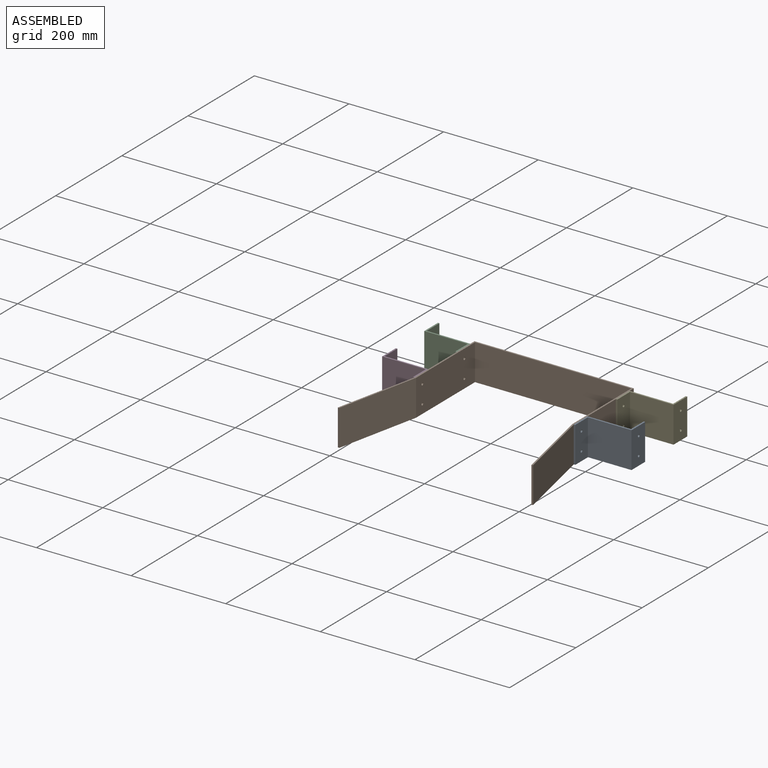
[diagram: assembled view]
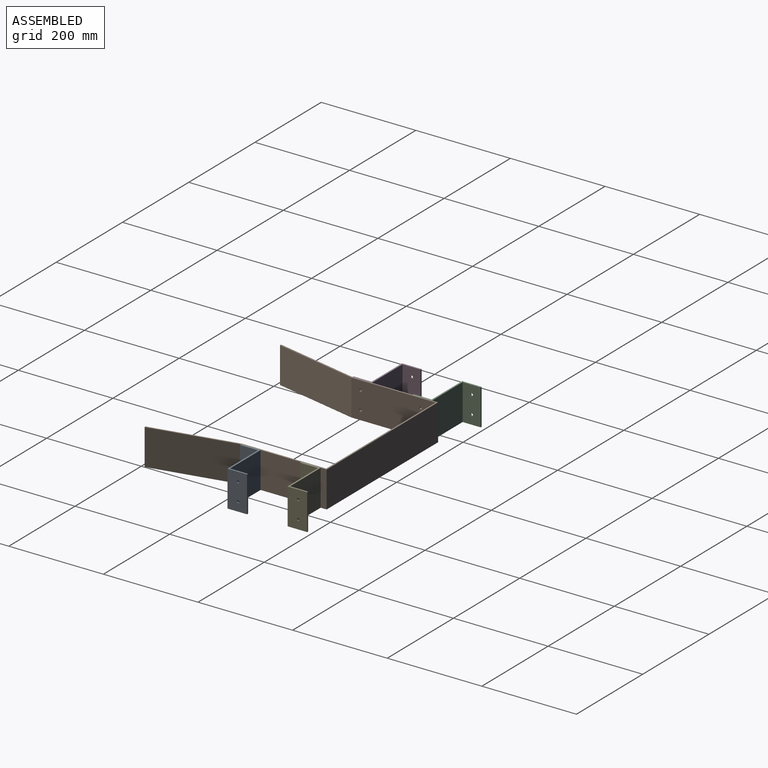
[diagram: assembled view, second angle]
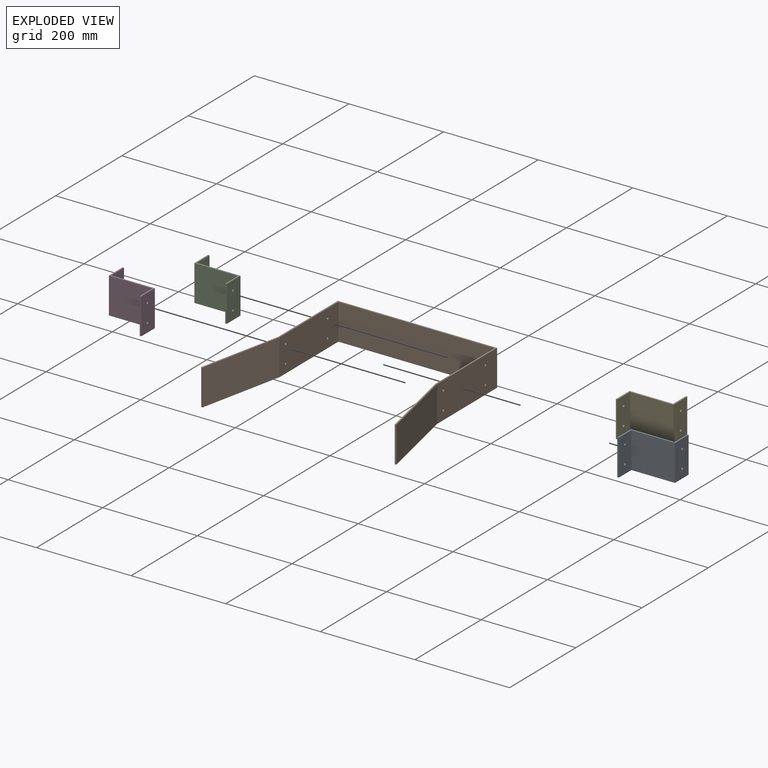
[diagram: exploded view]
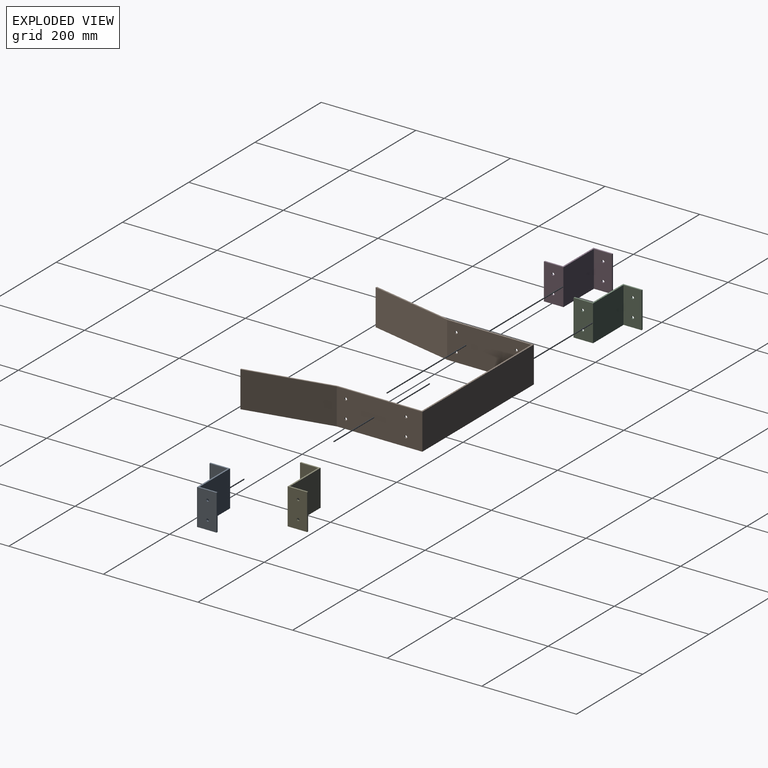
[diagram: exploded view, second angle]
ASSEMBLY  parts=5 mates=4
PART A: 14 faces, bbox 95.3x79.4x76.2 mm
  f0: plane 76.2x3.18mm, normal (0,1,0), area 241.9mm2, adj f1,f7,f8,f9
  f1: plane 76.2x41.28mm, normal (-1,0,0), area 3096.7mm2, adj f0,f2,f8,f9,f10,f11
  f2: plane 92.08x76.2mm, normal (0,-1,0), area 7016.1mm2, adj f1,f3,f8,f9
  f3: plane 76.2x38.1mm, normal (-1,0,0), area 2854.7mm2, adj f2,f4,f8,f9,f12,f13
  f4: plane 76.2x3.18mm, normal (0,-1,0), area 241.9mm2, adj f3,f5,f8,f9
  f5: plane 76.2x41.28mm, normal (1,0,0), area 3096.7mm2, adj f4,f6,f8,f9,f12,f13
  f6: plane 92.08x76.2mm, normal (0,1,0), area 7016.1mm2, adj f5,f7,f8,f9
  f7: plane 76.2x38.1mm, normal (1,0,0), area 2854.7mm2, adj f0,f6,f8,f9,f10,f11
  f8: plane 95.25x79.38mm, normal (0,0,1), area 544.4mm2, adj f0,f1,f2,f3,f4,f5,f6,f7
  f9: plane 95.25x79.38mm, normal (0,0,-1), area 544.4mm2, adj f0,f1,f2,f3,f4,f5,f6,f7
  f10: cylinder r=2.78mm len=5.56mm, axis (1,0,0), area 55.4mm2, adj f1,f7
  f11: cylinder r=2.78mm len=5.56mm, axis (1,0,0), area 55.4mm2, adj f1,f7
  f12: cylinder r=2.78mm len=5.56mm, axis (1,0,0), area 55.4mm2, adj f3,f5
  f13: cylinder r=2.78mm len=5.56mm, axis (1,0,0), area 55.4mm2, adj f3,f5
PART B: 22 faces, bbox 412.6x358.8x76.2 mm
  f0: plane 177.13x76.2mm, normal (-0.98,0.21,0), area 13805.2mm2, adj f1,f11,f12,f13
  f1: plane 76.2x3.1mm, normal (-0.21,-0.98,0), area 241.9mm2, adj f0,f2,f12,f13
  f2: plane 177.8x76.2mm, normal (0.98,-0.21,0), area 13855.9mm2, adj f1,f3,f12,f13
  f3: plane 177.8x76.2mm, normal (1,0,0), area 13451.4mm2, adj f2,f4,f12,f13,f14,f15,f18,f19
  f4: plane 330.2x76.2mm, normal (0,-1,0), area 25161.2mm2, adj f3,f5,f12,f13
  f5: plane 177.8x76.2mm, normal (-1,0,0), area 13451.4mm2, adj f4,f6,f12,f13,f16,f17,f20,f21
  f6: plane 177.8x76.2mm, normal (-0.98,-0.21,0), area 13855.9mm2, adj f5,f7,f12,f13
  f7: plane 76.2x3.1mm, normal (0.21,-0.98,0), area 241.9mm2, adj f6,f8,f12,f13
  f8: plane 177.13x76.2mm, normal (0.98,0.21,0), area 13805.2mm2, adj f7,f9,f12,f13
  f9: plane 180.98x76.2mm, normal (1,0,0), area 13693.3mm2, adj f8,f10,f12,f13,f16,f17,f20,f21
  f10: plane 336.55x76.2mm, normal (0,1,0), area 25645.1mm2, adj f9,f11,f12,f13
  f11: plane 180.98x76.2mm, normal (-1,0,0), area 13693.3mm2, adj f0,f10,f12,f13,f14,f15,f18,f19
  f12: plane 412.61x358.78mm, normal (0,0,1), area 3337.3mm2, adj f0,f1,f2,f3,f4,f5,f6,f7
  f13: plane 412.61x358.78mm, normal (0,0,-1), area 3337.3mm2, adj f0,f1,f2,f3,f4,f5,f6,f7
  f14: cylinder r=2.78mm len=5.56mm, axis (1,0,0), area 55.4mm2, adj f3,f11
  f15: cylinder r=2.78mm len=5.56mm, axis (1,0,0), area 55.4mm2, adj f3,f11
  f16: cylinder r=2.78mm len=5.56mm, axis (-1,0,0), area 55.4mm2, adj f5,f9
  f17: cylinder r=2.78mm len=5.56mm, axis (-1,0,0), area 55.4mm2, adj f5,f9
  f18: cylinder r=2.78mm len=5.56mm, axis (1,0,0), area 55.4mm2, adj f3,f11
  f19: cylinder r=2.78mm len=5.56mm, axis (1,0,0), area 55.4mm2, adj f3,f11
  f20: cylinder r=2.78mm len=5.56mm, axis (-1,0,0), area 55.4mm2, adj f5,f9
  f21: cylinder r=2.78mm len=5.56mm, axis (-1,0,0), area 55.4mm2, adj f5,f9
PART C: same geometry as A
PART D: same geometry as A
PART E: same geometry as A
PLACE A rot(axis=(0,1,0),180deg) t=(-21.47,37.14,92.11)mm
PLACE B t=(-24.65,-4.13,15.91)mm
PLACE C t=(-358.02,164.14,15.91)mm
PLACE D t=(-358.02,37.14,15.91)mm
PLACE E rot(axis=(0,1,0),180deg) t=(-21.47,164.14,92.11)mm
MATE fastened D.f12 <-> B.f15  axis (1,0,0) through (-358.02,14.92,73.06)mm
MATE fastened E.f13 <-> B.f18  axis (-1,0,0) through (-21.47,141.92,73.06)mm
MATE fastened A.f13 <-> B.f15  axis (-1,0,0) through (-21.47,14.92,73.06)mm
MATE fastened C.f12 <-> B.f18  axis (1,0,0) through (-358.02,141.92,73.06)mm
